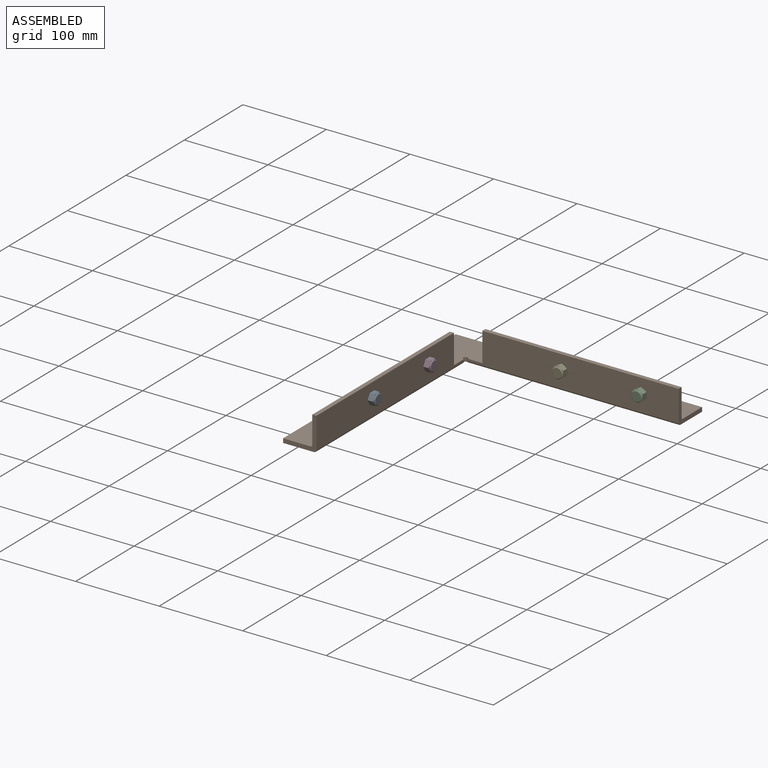
[diagram: assembled view]
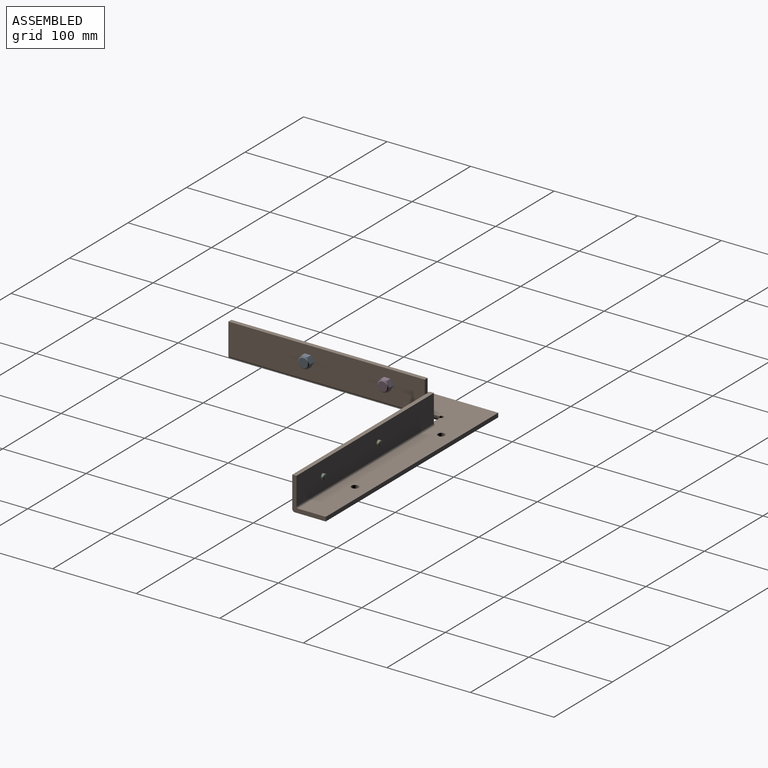
[diagram: assembled view, second angle]
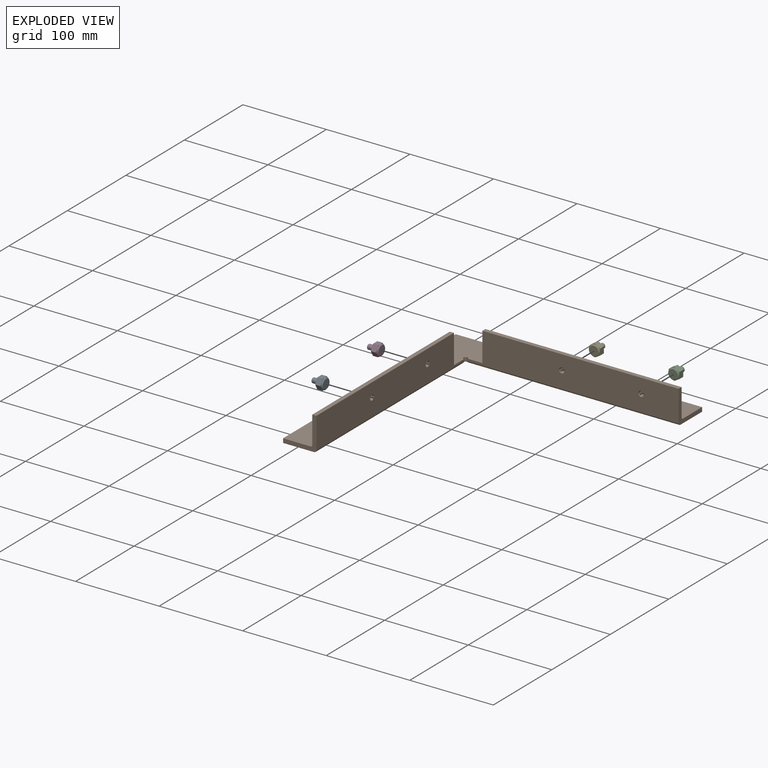
[diagram: exploded view]
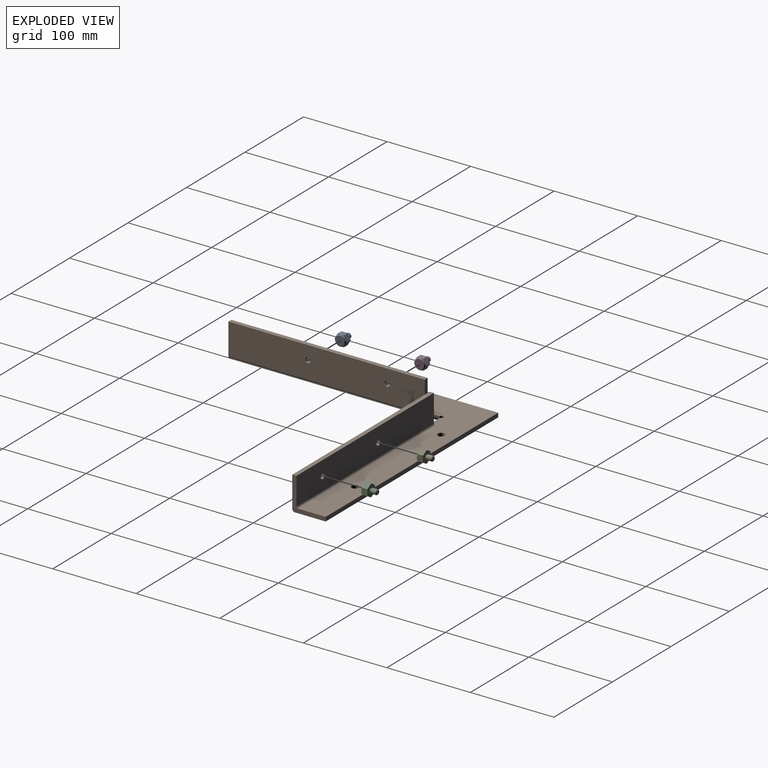
[diagram: exploded view, second angle]
ASSEMBLY  parts=5 mates=4
PART A: 27 faces, bbox 16.5x16.2x17 mm
  f0: plane 4.86x4.77mm, normal (0,-1,0), area 17.9mm2, adj f1
  f1: cone r=3mm half-angle=45deg, axis (0,1,0), area 14.7mm2, adj f0,f2
  f2: cylinder r=3mm len=6mm, axis (0,1,0), area 109.1mm2, adj f1,f4
  f3: plane 11.61x11.4mm, normal (0,1,0), area 102.1mm2, adj f8
  f4: cone r=2.4mm half-angle=45deg, axis (0,-1,0), area 14.4mm2, adj f2,f12
  f5: torus R=6.7mm, axis (0,-1,0), area 1.7mm2, adj f6,f13,f14
  f6: plane 5.63x3.25mm, normal (0,1,0), area 0.9mm2, adj f5,f13,f14,f18
  f7: torus R=6.7mm, axis (0,-1,0), area 1.7mm2, adj f9,f14,f16
  f8: cone r=5.7mm half-angle=45deg, axis (0,-1,0), area 43.4mm2, adj f3,f18
  f9: plane 6.5x1.09mm, normal (0,1,0), area 0.9mm2, adj f7,f14,f16,f18
  f10: plane 5.63x3.25mm, normal (0,1,0), area 0.9mm2, adj f11,f13,f18,f21
  f11: torus R=6.7mm, axis (0,-1,0), area 1.7mm2, adj f10,f13,f21
  f12: cylinder r=2.4mm len=4.8mm, axis (0,1,0), area 15.1mm2, adj f4,f22
  f13: plane 7.72x6.61mm, normal (1,0,0), area 47.8mm2, adj f5,f6,f10,f11,f14,f21,f22
  f14: plane 6.71x6.61mm, normal (0.5,0,-0.87), area 47.8mm2, adj f5,f6,f7,f9,f13,f16,f22
  f15: plane 5.63x3.25mm, normal (0,1,0), area 0.9mm2, adj f16,f17,f18,f23
  f16: plane 6.71x6.61mm, normal (-0.5,0,-0.87), area 47.8mm2, adj f7,f9,f14,f15,f17,f22,f23
  f17: torus R=6.7mm, axis (0,-1,0), area 1.7mm2, adj f15,f16,f23
  f18: cylinder r=6.5mm len=13mm, axis (0,1,0), area 32.7mm2, adj f6,f8,f9,f10,f15,f19,f25
  f19: plane 6.5x1.09mm, normal (0,1,0), area 0.9mm2, adj f18,f20,f21,f26
  f20: torus R=6.7mm, axis (0,-1,0), area 1.7mm2, adj f19,f21,f26
  f21: plane 6.71x6.61mm, normal (0.5,0,0.87), area 47.8mm2, adj f10,f11,f13,f19,f20,f22,f26
  f22: plane 15.01x13mm, normal (0,-1,0), area 128.3mm2, adj f12,f13,f14,f16,f21,f23,f26
  f23: plane 7.72x6.61mm, normal (-1,0,0), area 47.8mm2, adj f15,f16,f17,f22,f24,f25,f26
  f24: torus R=6.7mm, axis (0,-1,0), area 1.7mm2, adj f23,f25,f26
  f25: plane 5.63x3.25mm, normal (0,1,0), area 0.9mm2, adj f18,f23,f24,f26
  f26: plane 6.71x6.61mm, normal (-0.5,0,0.87), area 47.8mm2, adj f19,f20,f21,f22,f23,f24,f25
PART B: 27 faces, bbox 295x295x40 mm
  f0: plane 235x33mm, normal (-1,0,0), area 7688.6mm2, adj f2,f7,f13,f17,f23,f24
  f1: plane 252.5x37mm, normal (1,0,0), area 8663.6mm2, adj f2,f3,f7,f13,f14,f18,f23,f24
  f2: plane 235x5mm, normal (0,0,1), area 1175mm2, adj f0,f1,f7,f13
  f3: plane 295x295mm, normal (0,0,1), area 18468.3mm2, adj f1,f4,f7,f8,f9,f11,f12,f13
  f4: plane 295x5mm, normal (-1,0,0), area 1475mm2, adj f3,f5,f7,f9
  f5: plane 295x295mm, normal (0,0,-1), area 20234mm2, adj f4,f7,f9,f11,f14,f15,f19,f20
  f6: plane 235x5mm, normal (0,0,1), area 1175mm2, adj f8,f10,f11,f12
  f7: plane 40x40mm, normal (0,-1,0), area 373.9mm2, adj f0,f1,f2,f3,f4,f5,f14,f17
  f8: plane 252.5x37mm, normal (0,-1,0), area 8663.6mm2, adj f3,f6,f11,f12,f15,f18,f25,f26
  f9: plane 295x5mm, normal (0,1,0), area 1475mm2, adj f3,f4,f5,f11
  f10: plane 235x33mm, normal (0,1,0), area 7688.6mm2, adj f6,f11,f12,f16,f25,f26
  f11: plane 40x40mm, normal (1,0,0), area 373.9mm2, adj f3,f5,f6,f8,f9,f10,f15,f16
  f12: plane 35x7mm, normal (-1,0,0), area 175.9mm2, adj f3,f6,f8,f10,f16
  f13: plane 35x7mm, normal (0,1,0), area 175.9mm2, adj f0,f1,f2,f3,f17
  f14: cylinder r=3mm len=258mm, axis (0,1,0), area 1194.7mm2, adj f1,f5,f7,f15,f18
  f15: cylinder r=3mm len=258mm, axis (1,0,0), area 1194.7mm2, adj f5,f8,f11,f14,f18
  f16: cylinder r=2mm len=235mm, axis (-1,0,0), area 738.3mm2, adj f3,f10,f11,f12
  f17: cylinder r=2mm len=235mm, axis (0,-1,0), area 738.3mm2, adj f0,f3,f7,f13
  f18: cylinder r=2.5mm len=5mm, axis (0,0,1), area 54.2mm2, adj f1,f3,f8,f14,f15
  f19: cylinder r=4.25mm len=8.5mm, axis (0,0,1), area 133.5mm2, adj f3,f5
  f20: cylinder r=4.25mm len=8.5mm, axis (0,0,1), area 133.5mm2, adj f3,f5
  f21: cylinder r=4.25mm len=8.5mm, axis (0,0,1), area 133.5mm2, adj f3,f5
  f22: cylinder r=4.25mm len=8.5mm, axis (0,0,1), area 133.5mm2, adj f3,f5
  f23: cylinder r=3.25mm len=6.5mm, axis (1,0,0), area 102.1mm2, adj f0,f1
  f24: cylinder r=3.25mm len=6.5mm, axis (1,0,0), area 102.1mm2, adj f0,f1
  f25: cylinder r=3.25mm len=6.5mm, axis (0,-1,0), area 102.1mm2, adj f8,f10
  f26: cylinder r=3.25mm len=6.5mm, axis (0,-1,0), area 102.1mm2, adj f8,f10
PART C: same geometry as A
PART D: same geometry as A
PART E: same geometry as A
PLACE A rot(axis=(0.58,0.58,-0.58),120deg) t=(-128.81,-94.87,11.64)mm
PLACE B t=(-128.81,65.13,-11.86)mm
PLACE C rot(axis=(1,0,0),180deg) t=(81.19,65.13,10.64)mm
PLACE D rot(axis=(0.58,0.58,-0.58),120deg) t=(-128.81,0.13,11.64)mm
PLACE E rot(axis=(1,0,0),180deg) t=(-13.81,65.13,10.64)mm
MATE fastened D.f1 <-> B.f23  axis (-1,0,0) through (-128.81,0.13,11.64)mm
MATE fastened E.f1 <-> B.f26  axis (0,1,0) through (-13.81,65.13,10.64)mm
MATE fastened C.f1 <-> B.f25  axis (0,1,0) through (81.19,65.13,10.64)mm
MATE fastened A.f1 <-> B.f24  axis (-1,0,0) through (-128.81,-94.87,11.64)mm
